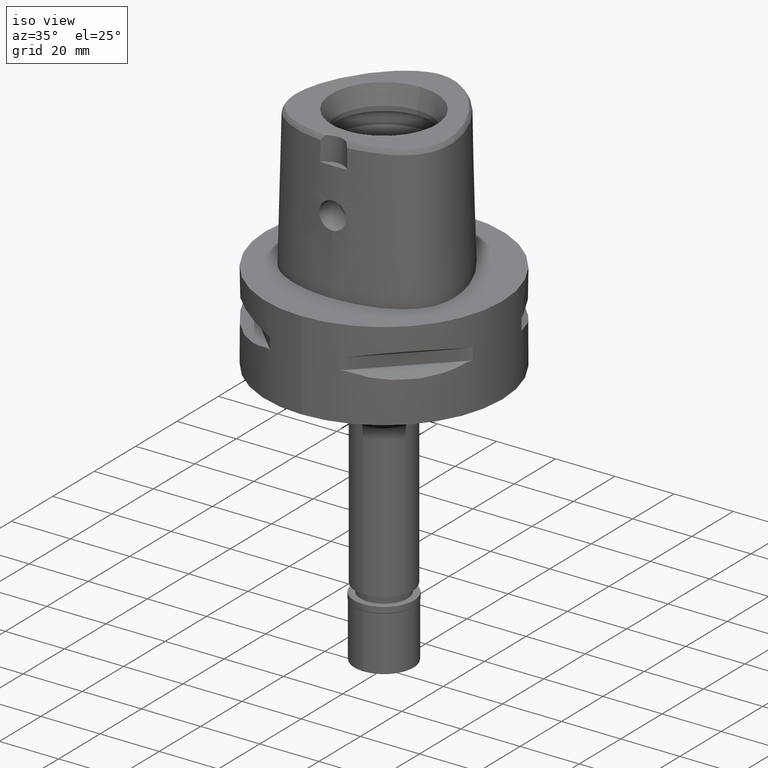
[diagram: clean part render]
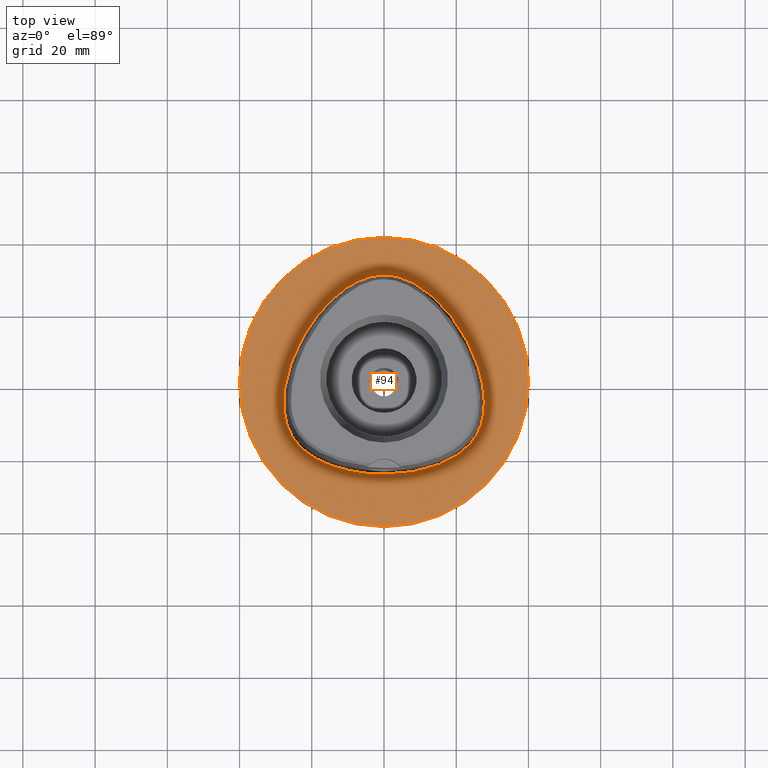
[diagram: tour spotlight — one face highlighted and labeled with its STEP entity id]
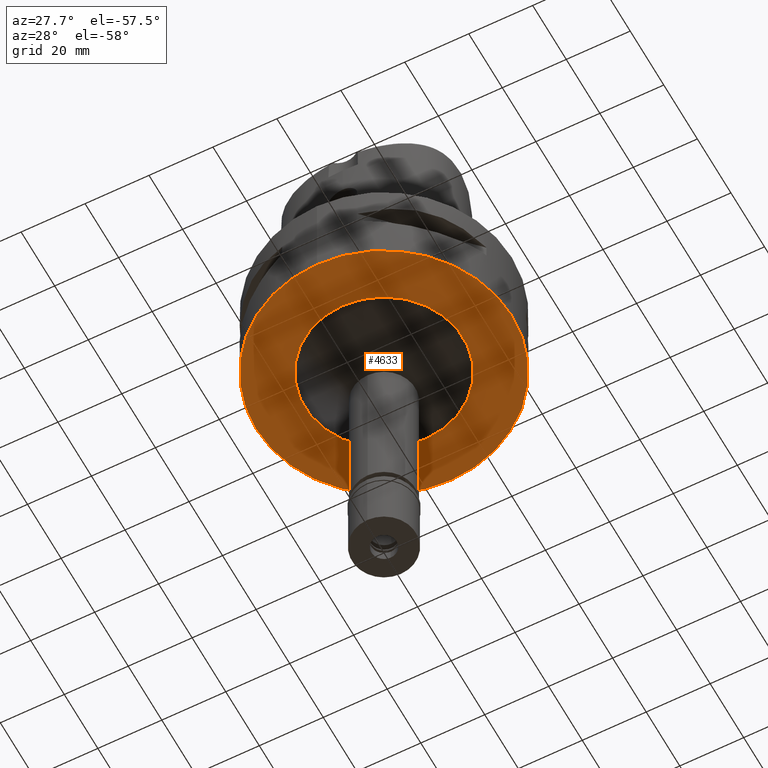
[diagram: tour spotlight — one face highlighted and labeled with its STEP entity id]
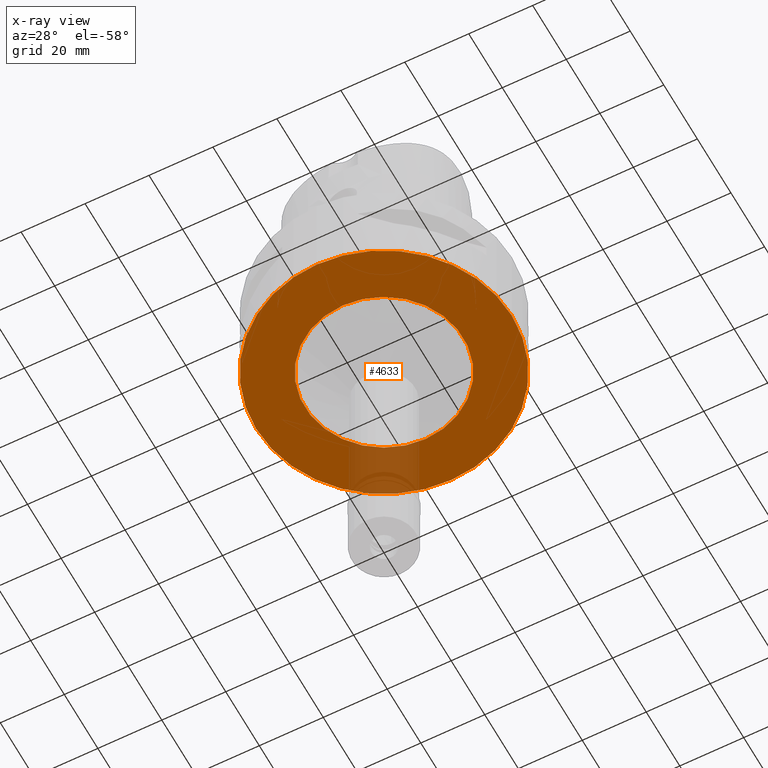
[diagram: x-ray of the same camera — body ghosted, this tour face saturated]
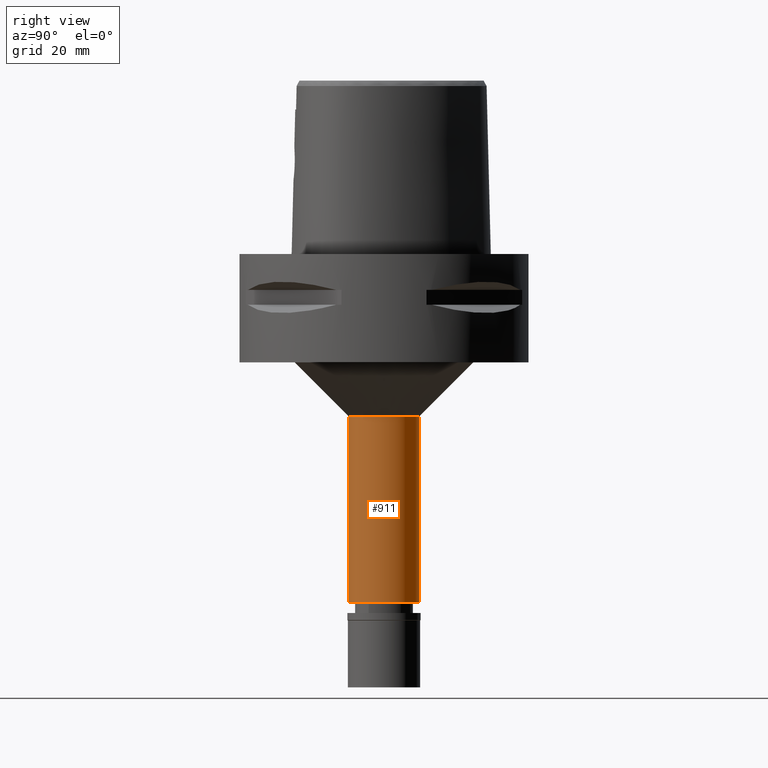
[diagram: tour spotlight — one face highlighted and labeled with its STEP entity id]
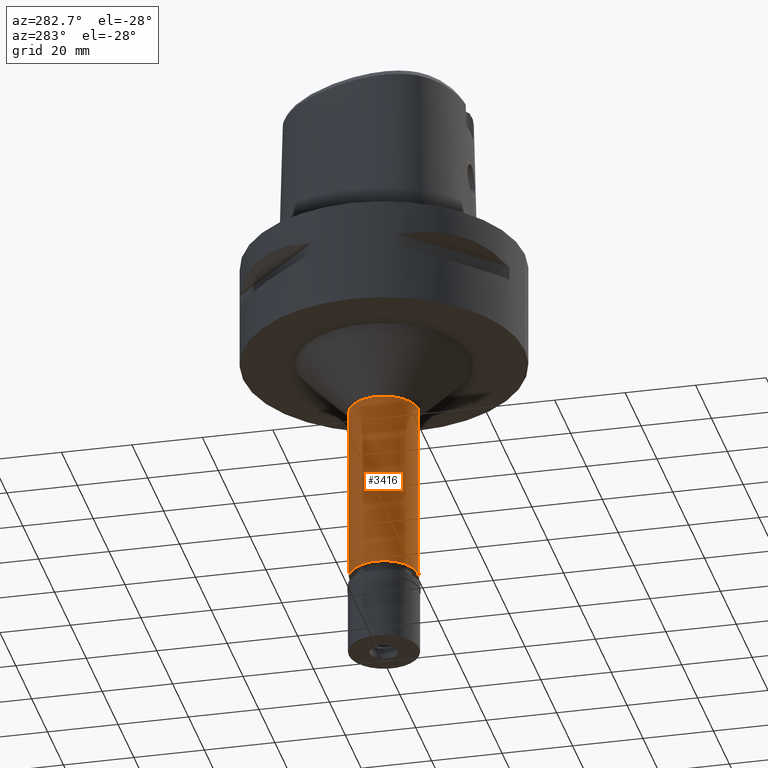
[diagram: tour spotlight — one face highlighted and labeled with its STEP entity id]
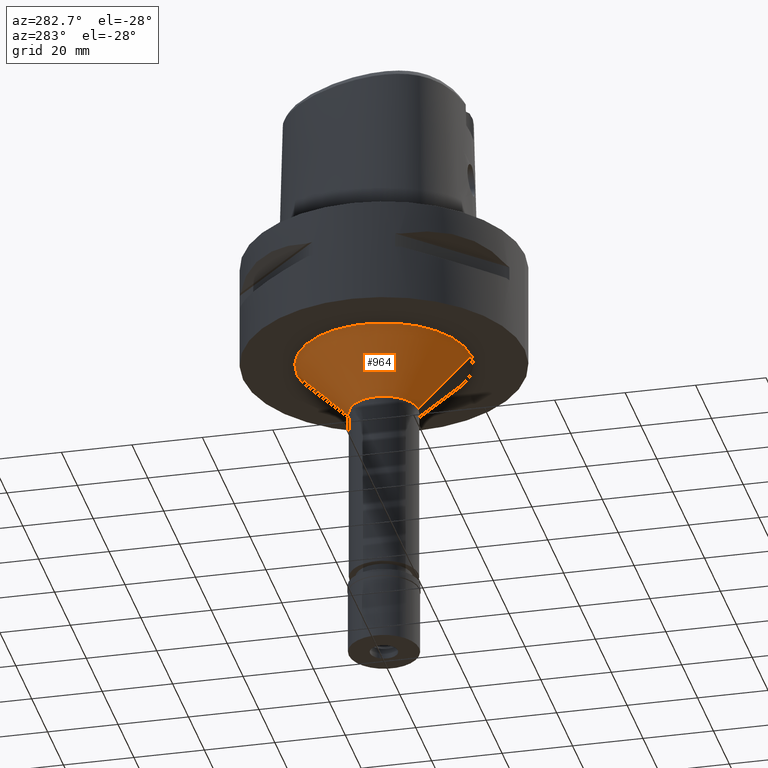
[diagram: tour spotlight — one face highlighted and labeled with its STEP entity id]
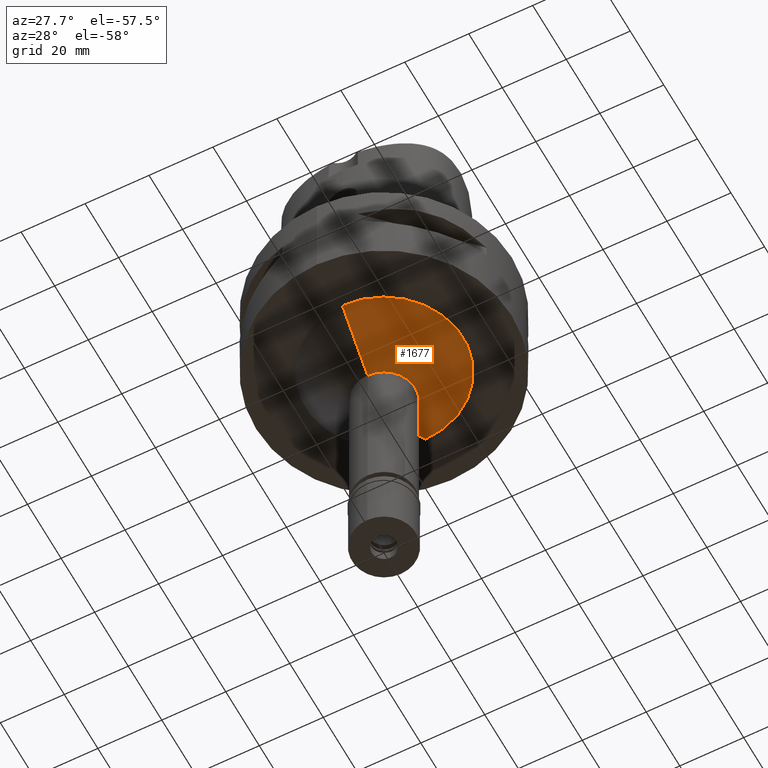
[diagram: tour spotlight — one face highlighted and labeled with its STEP entity id]
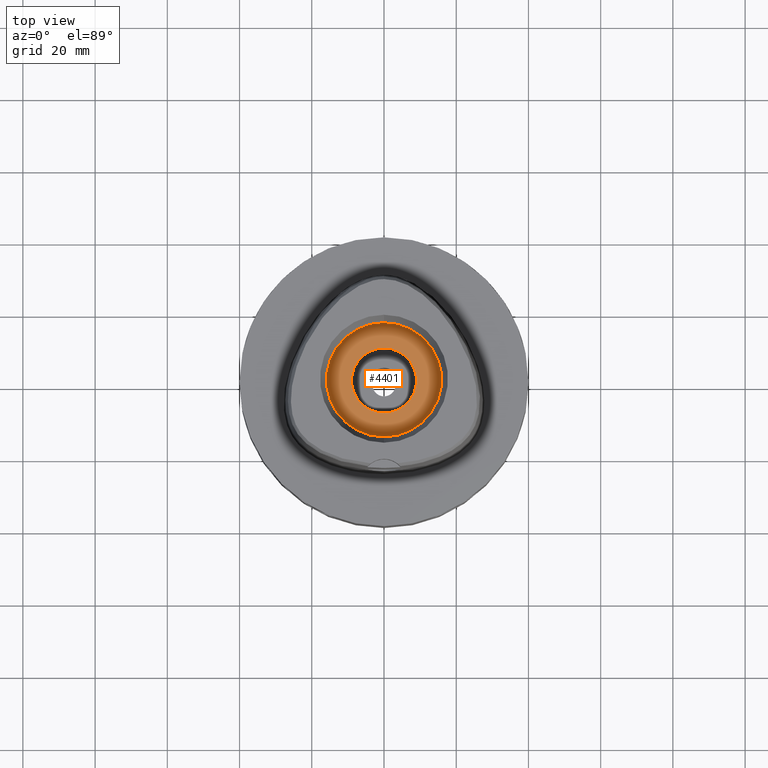
[diagram: tour spotlight — one face highlighted and labeled with its STEP entity id]
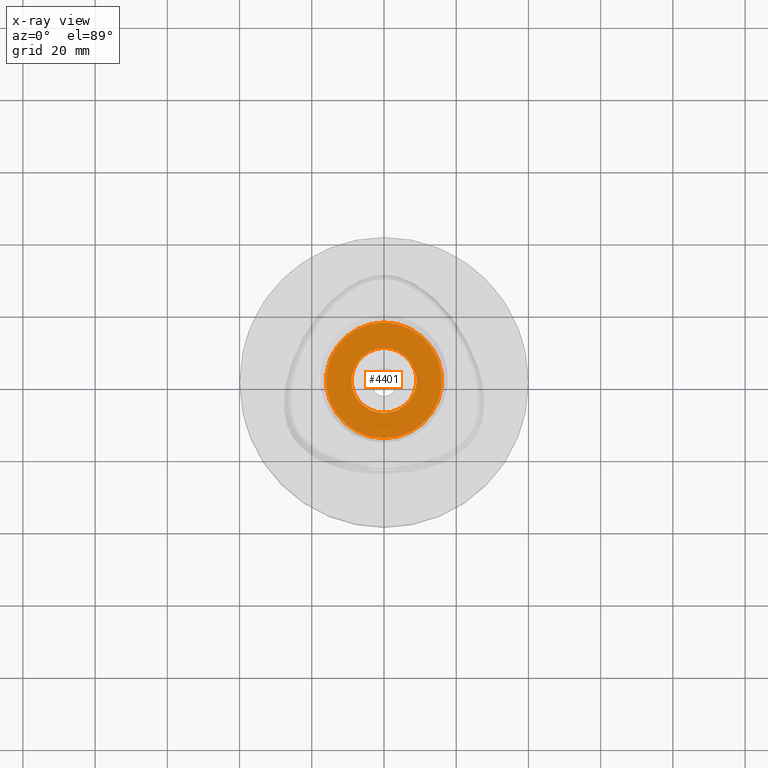
[diagram: x-ray of the same camera — body ghosted, this tour face saturated]
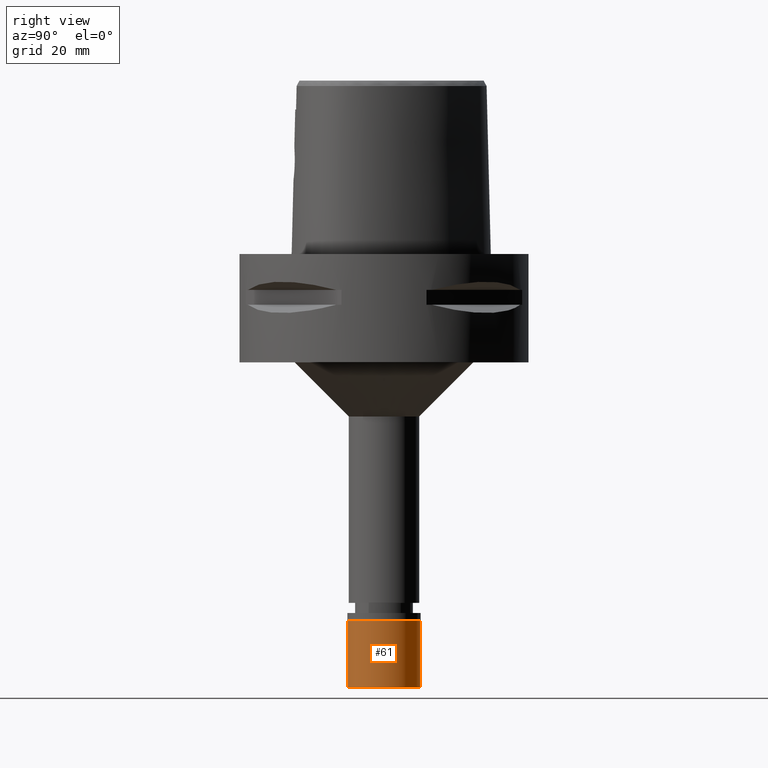
[diagram: tour spotlight — one face highlighted and labeled with its STEP entity id]
A machine part: a face-by-face anatomy tour. The part has 98 B-rep faces; the first image is the clean iso view, then the 8 largest visible faces are spotlighted one at a time (largest first), each with its STEP entity span.

Face 1 — top view, entity #94. In plain terms, the highlighted planar face has unit normal (0, 0, -1).
Definition (entity closure, byte-faithful):
#72 = VERTEX_POINT ( 'NONE', #533 ) ;
#92 = B_SPLINE_CURVE_WITH_KNOTS ( 'NONE', 3,
 ( #3425, #717, #3475, #3071, #4635, #5051, #3152, #359, #4661, #2687, #5027, #4610, #5000, #1089, #386, #1461, #2350, #3045, #3868, #692, #1170, #3838, #5080, #1903, #278 ),
 .UNSPECIFIED., .F., .F.,
 ( 4, 1, 1, 1, 1, 1, 1, 1, 1, 1, 1, 1, 1, 1, 1, 1, 1, 1, 1, 1, 1, 1, 4 ),
 ( 0.0000000000000000000, 0.04166666666711999617, 0.08333333333375000929, 0.1250000000004000134, 0.1666666666671000052, 0.2500000000002999823, 0.3333333333335000148, 0.4166666666668999985, 0.4583333333333999837, 0.5000000000001000311, 0.5416666666667999674, 0.5833333333333000637, 0.6250000000000000000, 0.6458333333333000637, 0.6666666666667000474, 0.6875000000000000000, 0.7083333333332000326, 0.7499999999999000799, 0.7916666666666000163, 0.8333333333332000326, 0.8749999999998000488, 0.9166666666664999852, 1.000000000000000000 ),
 .UNSPECIFIED. ) ;
#94 = ADVANCED_FACE ( 'NONE', ( #2259, #4889 ), #483, .F. ) ;
#168 = CARTESIAN_POINT ( 'NONE',  ( 1.049694954398138425, 29.57499994949292699, 2.020350682975860512E-06 ) ) ;
#176 = DIRECTION ( 'NONE',  ( 0.0000000000000000000, 0.0000000000000000000, -1.000000000000000000 ) ) ;
#278 = CARTESIAN_POINT ( 'NONE',  ( -1.503646693047000230E-11, -25.57499999999999929, 7.701247047482998387E-14 ) ) ;
#356 = EDGE_CURVE ( 'NONE', #712, #72, #92, .T. ) ;
#359 = CARTESIAN_POINT ( 'NONE',  ( -22.33885462298861313, 12.89734372997361334, 1.595594824506125359E-06 ) ) ;
#386 = CARTESIAN_POINT ( 'NONE',  ( -26.34912733559843900, -13.39455076519696952, 1.595594824506125359E-06 ) ) ;
#483 = PLANE ( 'NONE',  #2190 ) ;
#533 = CARTESIAN_POINT ( 'NONE',  ( -1.503646693047000230E-11, -25.57499999999999929, 7.701247047482998387E-14 ) ) ;
#557 = CARTESIAN_POINT ( 'NONE',  ( 22.33885461375145454, 12.89734372464069168, 2.020350682975860512E-06 ) ) ;
#646 = EDGE_LOOP ( 'NONE', ( #3183, #3051 ) ) ;
#689 = CARTESIAN_POINT ( 'NONE',  ( 3.645689543555000014E-11, 29.57499999998999840, 7.064719180030999212E-14 ) ) ;
#692 = CARTESIAN_POINT ( 'NONE',  ( -18.55019647169896402, -21.45394527736029744, 1.595594824506125359E-06 ) ) ;
#712 = VERTEX_POINT ( 'NONE', #689 ) ;
#717 = CARTESIAN_POINT ( 'NONE',  ( -1.049694955183609224, 29.57499996011365084, 1.595594824506125359E-06 ) ) ;
#748 = EDGE_CURVE ( 'NONE', #72, #712, #3134, .T. ) ;
#796 = CARTESIAN_POINT ( 'NONE',  ( -1.503646693047000230E-11, -25.57499999999999929, 7.701247047482998387E-14 ) ) ;
#838 = CIRCLE ( 'NONE', #3739, 40.00000000000000000 ) ;
#894 = CARTESIAN_POINT ( 'NONE',  ( 26.34912732586222361, -13.39455076092531094, 2.020350682975860512E-06 ) ) ;
#968 = CARTESIAN_POINT ( 'NONE',  ( 3.149084863600866147, 29.34015620035621552, 2.020350682975860512E-06 ) ) ;
#1089 = CARTESIAN_POINT ( 'NONE',  ( -27.10051713519218808, -11.41106444216246629, 1.595594824506125359E-06 ) ) ;
#1170 = CARTESIAN_POINT ( 'NONE',  ( -15.29776364832613034, -22.96525386901443966, 1.595594824506125359E-06 ) ) ;
#1296 = AXIS2_PLACEMENT_3D ( 'NONE', #4535, #176, #1848 ) ;
#1298 = EDGE_CURVE ( 'NONE', #4826, #2456, #838, .T. ) ;
#1314 = CARTESIAN_POINT ( 'NONE',  ( 17.75297947250131614, 19.52218746774529734, 2.020350682975860512E-06 ) ) ;
#1422 = DIRECTION ( 'NONE',  ( 0.0000000000000000000, 0.0000000000000000000, -1.000000000000000000 ) ) ;
#1461 = CARTESIAN_POINT ( 'NONE',  ( -25.63812386398702259, -14.80217771439694019, 1.595594824506125359E-06 ) ) ;
#1476 = DIRECTION ( 'NONE',  ( 0.0000000000000000000, -1.000000000000000000, 0.0000000000000000000 ) ) ;
#1648 = CARTESIAN_POINT ( 'NONE',  ( 15.29776364445727665, -22.96525385909394146, 2.020350682975860512E-06 ) ) ;
#1741 = CARTESIAN_POINT ( 'NONE',  ( 24.77458489416542520, -16.12173825127648286, 2.020350682975860512E-06 ) ) ;
#1765 = CARTESIAN_POINT ( 'NONE',  ( 26.77222809381433777, 1.900468737017501741, 2.020350682975860512E-06 ) ) ;
#1848 = DIRECTION ( 'NONE',  ( 0.0000000000000000000, -1.000000000000000000, 0.0000000000000000000 ) ) ;
#1903 = CARTESIAN_POINT ( 'NONE',  ( -2.676740183358208736, -25.57499996010817966, 1.595594824506125359E-06 ) ) ;
#2102 = DIRECTION ( 'NONE',  ( 0.0000000000000000000, 0.0000000000000000000, -1.000000000000000000 ) ) ;
#2190 = AXIS2_PLACEMENT_3D ( 'NONE', #4427, #2102, #1476 ) ;
#2259 = FACE_OUTER_BOUND ( 'NONE', #646, .T. ) ;
#2285 = CARTESIAN_POINT ( 'NONE',  ( 0.0000000000000000000, 1.293227019899999867E-14, 0.0000000000000000000 ) ) ;
#2350 = CARTESIAN_POINT ( 'NONE',  ( -24.77458490273590996, -16.12173825758891965, 1.595594824506125359E-06 ) ) ;
#2399 = CARTESIAN_POINT ( 'NONE',  ( 6.691850456881861753, -25.24546869981140063, 2.020350682975860512E-06 ) ) ;
#2456 = VERTEX_POINT ( 'NONE', #2688 ) ;
#2495 = CARTESIAN_POINT ( 'NONE',  ( 27.68378748809411505, -8.751933587375303247, 2.020350682975860512E-06 ) ) ;
#2572 = CARTESIAN_POINT ( 'NONE',  ( 13.21796077208793285, 24.04386714922729595, 2.020350682975860512E-06 ) ) ;
#2687 = CARTESIAN_POINT ( 'NONE',  ( -26.77222810408956022, 1.900468739746888458, 1.595594824506125359E-06 ) ) ;
#2688 = CARTESIAN_POINT ( 'NONE',  ( 0.0000000000000000000, -40.00000000000000000, 0.0000000000000000000 ) ) ;
#2810 = CARTESIAN_POINT ( 'NONE',  ( 11.74025984155485958, -24.13566401366437475, 2.020350682975860512E-06 ) ) ;
#2834 = CARTESIAN_POINT ( 'NONE',  ( 2.676740182761364828, -25.57499994949064970, 2.020350682975860512E-06 ) ) ;
#3045 = CARTESIAN_POINT ( 'NONE',  ( -23.43253025873229944, -17.76420407368973287, 1.595594824506125359E-06 ) ) ;
#3051 = ORIENTED_EDGE ( 'NONE', *, *, #4613, .F. ) ;
#3071 = CARTESIAN_POINT ( 'NONE',  ( -6.262496929278441371, 28.35083004117371885, 1.595594824506125359E-06 ) ) ;
#3134 = B_SPLINE_CURVE_WITH_KNOTS ( 'NONE', 3,
 ( #796, #2834, #2399, #2810, #1648, #3226, #4014, #3630, #1741, #4525, #894, #4938, #2495, #4139, #3722, #1765, #3698, #557, #1314, #2572, #3775, #4912, #968, #168, #3312 ),
 .UNSPECIFIED., .F., .F.,
 ( 4, 1, 1, 1, 1, 1, 1, 1, 1, 1, 1, 1, 1, 1, 1, 1, 1, 1, 1, 1, 1, 1, 4 ),
 ( 0.0000000000000000000, 0.08333333333344000726, 0.1250000000001000033, 0.1666666666668000230, 0.2083333333333000081, 0.2500000000000000000, 0.2916666666666999919, 0.3125000000000000000, 0.3333333333333000081, 0.3541666666666000163, 0.3749999999998999689, 0.4166666666666000163, 0.4583333333332000326, 0.4999999999998999689, 0.5416666666664999852, 0.5833333333331000015, 0.6666666666664999852, 0.7499999999997000177, 0.8333333333329999704, 0.8749999999995999866, 0.9166666666663000340, 0.9583333333329000503, 1.000000000000000000 ),
 .UNSPECIFIED. ) ;
#3152 = CARTESIAN_POINT ( 'NONE',  ( -17.75297948074545573, 19.52218747452653957, 1.595594824506125359E-06 ) ) ;
#3183 = ORIENTED_EDGE ( 'NONE', *, *, #1298, .F. ) ;
#3226 = CARTESIAN_POINT ( 'NONE',  ( 18.55019646660002053, -21.45394526799957902, 2.020350682975860512E-06 ) ) ;
#3303 = EDGE_LOOP ( 'NONE', ( #3628, #3697 ) ) ;
#3312 = CARTESIAN_POINT ( 'NONE',  ( 3.645689543555000014E-11, 29.57499999998999840, 7.064719180030999212E-14 ) ) ;
#3355 = CARTESIAN_POINT ( 'NONE',  ( 0.0000000000000000000, 40.00000000000000000, 0.0000000000000000000 ) ) ;
#3425 = CARTESIAN_POINT ( 'NONE',  ( 3.645689543555000014E-11, 29.57499999998999840, 7.064719180030999212E-14 ) ) ;
#3475 = CARTESIAN_POINT ( 'NONE',  ( -3.149084865895401819, 29.34015621079255354, 1.595594824506125359E-06 ) ) ;
#3628 = ORIENTED_EDGE ( 'NONE', *, *, #356, .F. ) ;
#3630 = CARTESIAN_POINT ( 'NONE',  ( 23.43253025107832599, -17.76420406627631010, 2.020350682975860512E-06 ) ) ;
#3697 = ORIENTED_EDGE ( 'NONE', *, *, #748, .F. ) ;
#3698 = CARTESIAN_POINT ( 'NONE',  ( 25.20914245292983580, 6.827421855915919657, 2.020350682975860512E-06 ) ) ;
#3722 = CARTESIAN_POINT ( 'NONE',  ( 27.53737506855495099, -1.765625007642571243, 2.020350682975860512E-06 ) ) ;
#3739 = AXIS2_PLACEMENT_3D ( 'NONE', #2285, #1422, #4601 ) ;
#3775 = CARTESIAN_POINT ( 'NONE',  ( 9.304563380186808175, 26.79191401927194249, 2.020350682975860512E-06 ) ) ;
#3838 = CARTESIAN_POINT ( 'NONE',  ( -11.74025984432930514, -24.13566402393587040, 1.595594824506125359E-06 ) ) ;
#3868 = CARTESIAN_POINT ( 'NONE',  ( -21.42129056940252596, -19.59889645246299494, 1.595594824506125359E-06 ) ) ;
#4014 = CARTESIAN_POINT ( 'NONE',  ( 21.42129056295577882, -19.59889644397081199, 2.020350682975860512E-06 ) ) ;
#4139 = CARTESIAN_POINT ( 'NONE',  ( 27.85475984679016292, -5.337968751270051548, 2.020350682975860512E-06 ) ) ;
#4361 = CIRCLE ( 'NONE', #1296, 40.00000000000000000 ) ;
#4427 = CARTESIAN_POINT ( 'NONE',  ( 0.0000000000000000000, 1.224646799146999965E-14, 0.0000000000000000000 ) ) ;
#4525 = CARTESIAN_POINT ( 'NONE',  ( 25.63812385476946076, -14.80217770907538366, 2.020350682975860512E-06 ) ) ;
#4535 = CARTESIAN_POINT ( 'NONE',  ( 0.0000000000000000000, 1.293227019899999867E-14, 0.0000000000000000000 ) ) ;
#4601 = DIRECTION ( 'NONE',  ( 0.0000000000000000000, 1.000000000000000000, 0.0000000000000000000 ) ) ;
#4610 = CARTESIAN_POINT ( 'NONE',  ( -27.85475985745046756, -5.337968751003428380, 1.595594824506125359E-06 ) ) ;
#4613 = EDGE_CURVE ( 'NONE', #2456, #4826, #4361, .T. ) ;
#4635 = CARTESIAN_POINT ( 'NONE',  ( -9.304563385743579218, 26.79191402835996172, 1.595594824506125359E-06 ) ) ;
#4661 = CARTESIAN_POINT ( 'NONE',  ( -25.20914246279390269, 6.827421859928866965, 1.595594824506125359E-06 ) ) ;
#4826 = VERTEX_POINT ( 'NONE', #3355 ) ;
#4889 = FACE_BOUND ( 'NONE', #3303, .T. ) ;
#4912 = CARTESIAN_POINT ( 'NONE',  ( 6.262496925149326543, 28.35083003135327928, 2.020350682975860512E-06 ) ) ;
#4938 = CARTESIAN_POINT ( 'NONE',  ( 27.10051712494639631, -11.41106443924220670, 2.020350682975860512E-06 ) ) ;
#5000 = CARTESIAN_POINT ( 'NONE',  ( -27.68378749867737909, -8.751933588715409940, 1.595594824506125359E-06 ) ) ;
#5027 = CARTESIAN_POINT ( 'NONE',  ( -27.53737507908477511, -1.765625006035392852, 1.595594824506125359E-06 ) ) ;
#5051 = CARTESIAN_POINT ( 'NONE',  ( -13.21796077910077294, 24.04386715727211055, 1.595594824506125359E-06 ) ) ;
#5080 = CARTESIAN_POINT ( 'NONE',  ( -6.691850458342099017, -25.24546871036294249, 1.595594824506125359E-06 ) ) ;

Face 2 — auxiliary view, entity #4633. An x-ray twin of the same camera follows (body ghosted, this face saturated) — the face is partly hidden behind the body. In plain terms, the highlighted planar face has unit normal (0, 0, -1).
Definition (entity closure, byte-faithful):
#18 = VERTEX_POINT ( 'NONE', #2531 ) ;
#213 = DIRECTION ( 'NONE',  ( 0.0000000000000000000, 0.0000000000000000000, -1.000000000000000000 ) ) ;
#481 = CARTESIAN_POINT ( 'NONE',  ( 0.0000000000000000000, 24.75000000000000000, -30.00000000000000000 ) ) ;
#488 = DIRECTION ( 'NONE',  ( 0.0000000000000000000, 0.0000000000000000000, 1.000000000000000000 ) ) ;
#569 = DIRECTION ( 'NONE',  ( 0.0000000000000000000, 0.0000000000000000000, -1.000000000000000000 ) ) ;
#641 = DIRECTION ( 'NONE',  ( 0.0000000000000000000, -1.000000000000000000, 0.0000000000000000000 ) ) ;
#755 = CIRCLE ( 'NONE', #3664, 40.00000000000000000 ) ;
#860 = ORIENTED_EDGE ( 'NONE', *, *, #3222, .F. ) ;
#977 = FACE_BOUND ( 'NONE', #2880, .T. ) ;
#1053 = AXIS2_PLACEMENT_3D ( 'NONE', #1438, #213, #1857 ) ;
#1177 = VERTEX_POINT ( 'NONE', #481 ) ;
#1395 = DIRECTION ( 'NONE',  ( 0.0000000000000000000, 1.000000000000000000, 0.0000000000000000000 ) ) ;
#1438 = CARTESIAN_POINT ( 'NONE',  ( 0.0000000000000000000, 0.0000000000000000000, -30.00000000000000000 ) ) ;
#1471 = EDGE_CURVE ( 'NONE', #18, #3872, #755, .T. ) ;
#1561 = ORIENTED_EDGE ( 'NONE', *, *, #1471, .F. ) ;
#1660 = CARTESIAN_POINT ( 'NONE',  ( 0.0000000000000000000, 0.0000000000000000000, -30.00000000000000000 ) ) ;
#1801 = FACE_OUTER_BOUND ( 'NONE', #2472, .T. ) ;
#1857 = DIRECTION ( 'NONE',  ( 0.0000000000000000000, 1.000000000000000000, 0.0000000000000000000 ) ) ;
#2165 = EDGE_CURVE ( 'NONE', #2783, #1177, #4246, .T. ) ;
#2235 = CARTESIAN_POINT ( 'NONE',  ( 0.0000000000000000000, -24.75000000000000000, -30.00000000000000000 ) ) ;
#2469 = CIRCLE ( 'NONE', #1053, 24.75000000000000000 ) ;
#2472 = EDGE_LOOP ( 'NONE', ( #1561, #860 ) ) ;
#2531 = CARTESIAN_POINT ( 'NONE',  ( 0.0000000000000000000, 40.00000000000000000, -30.00000000000000000 ) ) ;
#2638 = PLANE ( 'NONE',  #5018 ) ;
#2783 = VERTEX_POINT ( 'NONE', #2235 ) ;
#2880 = EDGE_LOOP ( 'NONE', ( #4231, #4095 ) ) ;
#3222 = EDGE_CURVE ( 'NONE', #3872, #18, #3607, .T. ) ;
#3441 = CARTESIAN_POINT ( 'NONE',  ( 0.0000000000000000000, 1.293227019899999867E-14, -30.00000000000000000 ) ) ;
#3607 = CIRCLE ( 'NONE', #4504, 40.00000000000000000 ) ;
#3664 = AXIS2_PLACEMENT_3D ( 'NONE', #3441, #4939, #1395 ) ;
#3710 = DIRECTION ( 'NONE',  ( 0.0000000000000000000, -1.000000000000000000, 0.0000000000000000000 ) ) ;
#3758 = CARTESIAN_POINT ( 'NONE',  ( 0.0000000000000000000, 0.0000000000000000000, -30.00000000000000000 ) ) ;
#3855 = CARTESIAN_POINT ( 'NONE',  ( 0.0000000000000000000, -40.00000000000000000, -30.00000000000000000 ) ) ;
#3872 = VERTEX_POINT ( 'NONE', #3855 ) ;
#4044 = DIRECTION ( 'NONE',  ( 0.0000000000000000000, -1.000000000000000000, 0.0000000000000000000 ) ) ;
#4095 = ORIENTED_EDGE ( 'NONE', *, *, #2165, .F. ) ;
#4201 = DIRECTION ( 'NONE',  ( 0.0000000000000000000, 0.0000000000000000000, -1.000000000000000000 ) ) ;
#4231 = ORIENTED_EDGE ( 'NONE', *, *, #4937, .F. ) ;
#4246 = CIRCLE ( 'NONE', #4408, 24.75000000000000000 ) ;
#4408 = AXIS2_PLACEMENT_3D ( 'NONE', #1660, #569, #3710 ) ;
#4504 = AXIS2_PLACEMENT_3D ( 'NONE', #4505, #488, #4044 ) ;
#4505 = CARTESIAN_POINT ( 'NONE',  ( 0.0000000000000000000, 1.293227019899999867E-14, -30.00000000000000000 ) ) ;
#4633 = ADVANCED_FACE ( 'NONE', ( #1801, #977 ), #2638, .T. ) ;
#4937 = EDGE_CURVE ( 'NONE', #1177, #2783, #2469, .T. ) ;
#4939 = DIRECTION ( 'NONE',  ( 0.0000000000000000000, 0.0000000000000000000, 1.000000000000000000 ) ) ;
#5018 = AXIS2_PLACEMENT_3D ( 'NONE', #3758, #4201, #641 ) ;

Face 3 — right view, entity #911. In plain terms, the highlighted cylindrical surface (edge-blend (fillet) strip) has radius 9.75 mm, axis along (0, 0, -1).
Definition (entity closure, byte-faithful):
#37 = ORIENTED_EDGE ( 'NONE', *, *, #4923, .T. ) ;
#153 = EDGE_CURVE ( 'NONE', #1378, #311, #2028, .T. ) ;
#311 = VERTEX_POINT ( 'NONE', #4328 ) ;
#440 = AXIS2_PLACEMENT_3D ( 'NONE', #5012, #875, #1342 ) ;
#490 = VERTEX_POINT ( 'NONE', #4870 ) ;
#875 = DIRECTION ( 'NONE',  ( 0.0000000000000000000, 0.0000000000000000000, 1.000000000000000000 ) ) ;
#911 = ADVANCED_FACE ( 'NONE', ( #1815 ), #3386, .T. ) ;
#1098 = DIRECTION ( 'NONE',  ( 0.0000000000000000000, 1.000000000000000000, 0.0000000000000000000 ) ) ;
#1126 = VECTOR ( 'NONE', #4666, 1000.000000000000000 ) ;
#1342 = DIRECTION ( 'NONE',  ( 0.0000000000000000000, -1.000000000000000000, 0.0000000000000000000 ) ) ;
#1378 = VERTEX_POINT ( 'NONE', #3009 ) ;
#1482 = DIRECTION ( 'NONE',  ( 0.0000000000000000000, 0.0000000000000000000, -1.000000000000000000 ) ) ;
#1760 = CARTESIAN_POINT ( 'NONE',  ( 0.0000000000000000000, 9.750000000000000000, -45.00000000000000000 ) ) ;
#1782 = EDGE_CURVE ( 'NONE', #1897, #490, #3832, .T. ) ;
#1815 = FACE_OUTER_BOUND ( 'NONE', #2848, .T. ) ;
#1897 = VERTEX_POINT ( 'NONE', #1760 ) ;
#1939 = CARTESIAN_POINT ( 'NONE',  ( 0.0000000000000000000, 0.0000000000000000000, -45.00000000000000000 ) ) ;
#2004 = ORIENTED_EDGE ( 'NONE', *, *, #153, .T. ) ;
#2028 = CIRCLE ( 'NONE', #440, 9.750000000000000000 ) ;
#2212 = LINE ( 'NONE', #3779, #4673 ) ;
#2229 = CARTESIAN_POINT ( 'NONE',  ( 0.0000000000000000000, -9.750000000000000000, -45.00000000000000000 ) ) ;
#2385 = DIRECTION ( 'NONE',  ( 0.0000000000000000000, 0.0000000000000000000, -1.000000000000000000 ) ) ;
#2848 = EDGE_LOOP ( 'NONE', ( #3623, #37, #2004, #4013 ) ) ;
#2905 = DIRECTION ( 'NONE',  ( 0.0000000000000000000, 0.0000000000000000000, -1.000000000000000000 ) ) ;
#3009 = CARTESIAN_POINT ( 'NONE',  ( 0.0000000000000000000, -9.750000000000000000, -96.60000000000000853 ) ) ;
#3294 = CARTESIAN_POINT ( 'NONE',  ( 0.0000000000000000000, 1.293227019899999867E-14, 5.599999999999999645 ) ) ;
#3386 = CYLINDRICAL_SURFACE ( 'NONE', #4404, 9.750000000000000000 ) ;
#3482 = LINE ( 'NONE', #2229, #1126 ) ;
#3623 = ORIENTED_EDGE ( 'NONE', *, *, #1782, .T. ) ;
#3779 = CARTESIAN_POINT ( 'NONE',  ( 0.0000000000000000000, 9.750000000000000000, -45.00000000000000000 ) ) ;
#3832 = CIRCLE ( 'NONE', #4327, 9.750000000000000000 ) ;
#3978 = EDGE_CURVE ( 'NONE', #1897, #311, #2212, .T. ) ;
#4013 = ORIENTED_EDGE ( 'NONE', *, *, #3978, .F. ) ;
#4327 = AXIS2_PLACEMENT_3D ( 'NONE', #1939, #2385, #1098 ) ;
#4328 = CARTESIAN_POINT ( 'NONE',  ( 0.0000000000000000000, 9.750000000000000000, -96.60000000000000853 ) ) ;
#4404 = AXIS2_PLACEMENT_3D ( 'NONE', #3294, #2905, #4473 ) ;
#4473 = DIRECTION ( 'NONE',  ( 0.0000000000000000000, -1.000000000000000000, 0.0000000000000000000 ) ) ;
#4666 = DIRECTION ( 'NONE',  ( 0.0000000000000000000, 0.0000000000000000000, -1.000000000000000000 ) ) ;
#4673 = VECTOR ( 'NONE', #1482, 1000.000000000000000 ) ;
#4870 = CARTESIAN_POINT ( 'NONE',  ( 0.0000000000000000000, -9.750000000000000000, -45.00000000000000000 ) ) ;
#4923 = EDGE_CURVE ( 'NONE', #490, #1378, #3482, .T. ) ;
#5012 = CARTESIAN_POINT ( 'NONE',  ( 0.0000000000000000000, 1.293227019899999867E-14, -96.60000000000000853 ) ) ;

Face 4 — auxiliary view, entity #3416. In plain terms, the highlighted cylindrical surface (edge-blend (fillet) strip) has radius 9.75 mm, axis along (0, 0, -1).
Definition (entity closure, byte-faithful):
#66 = ORIENTED_EDGE ( 'NONE', *, *, #4923, .F. ) ;
#276 = FACE_OUTER_BOUND ( 'NONE', #2771, .T. ) ;
#307 = EDGE_CURVE ( 'NONE', #490, #1897, #2196, .T. ) ;
#311 = VERTEX_POINT ( 'NONE', #4328 ) ;
#470 = EDGE_CURVE ( 'NONE', #311, #1378, #5072, .T. ) ;
#490 = VERTEX_POINT ( 'NONE', #4870 ) ;
#743 = CARTESIAN_POINT ( 'NONE',  ( 0.0000000000000000000, 0.0000000000000000000, -45.00000000000000000 ) ) ;
#1126 = VECTOR ( 'NONE', #4666, 1000.000000000000000 ) ;
#1152 = ORIENTED_EDGE ( 'NONE', *, *, #470, .T. ) ;
#1355 = AXIS2_PLACEMENT_3D ( 'NONE', #1724, #3300, #2186 ) ;
#1378 = VERTEX_POINT ( 'NONE', #3009 ) ;
#1482 = DIRECTION ( 'NONE',  ( 0.0000000000000000000, 0.0000000000000000000, -1.000000000000000000 ) ) ;
#1509 = DIRECTION ( 'NONE',  ( 0.0000000000000000000, 0.0000000000000000000, -1.000000000000000000 ) ) ;
#1724 = CARTESIAN_POINT ( 'NONE',  ( 0.0000000000000000000, 1.293227019899999867E-14, -96.60000000000000853 ) ) ;
#1760 = CARTESIAN_POINT ( 'NONE',  ( 0.0000000000000000000, 9.750000000000000000, -45.00000000000000000 ) ) ;
#1871 = AXIS2_PLACEMENT_3D ( 'NONE', #2319, #1509, #2294 ) ;
#1872 = CYLINDRICAL_SURFACE ( 'NONE', #1871, 9.750000000000000000 ) ;
#1897 = VERTEX_POINT ( 'NONE', #1760 ) ;
#2186 = DIRECTION ( 'NONE',  ( 0.0000000000000000000, 1.000000000000000000, 0.0000000000000000000 ) ) ;
#2196 = CIRCLE ( 'NONE', #2279, 9.750000000000000000 ) ;
#2212 = LINE ( 'NONE', #3779, #4673 ) ;
#2229 = CARTESIAN_POINT ( 'NONE',  ( 0.0000000000000000000, -9.750000000000000000, -45.00000000000000000 ) ) ;
#2279 = AXIS2_PLACEMENT_3D ( 'NONE', #743, #2377, #2761 ) ;
#2294 = DIRECTION ( 'NONE',  ( 0.0000000000000000000, -1.000000000000000000, 0.0000000000000000000 ) ) ;
#2319 = CARTESIAN_POINT ( 'NONE',  ( 0.0000000000000000000, 1.293227019899999867E-14, 5.599999999999999645 ) ) ;
#2377 = DIRECTION ( 'NONE',  ( 0.0000000000000000000, 0.0000000000000000000, -1.000000000000000000 ) ) ;
#2407 = ORIENTED_EDGE ( 'NONE', *, *, #3978, .T. ) ;
#2761 = DIRECTION ( 'NONE',  ( 0.0000000000000000000, -1.000000000000000000, 0.0000000000000000000 ) ) ;
#2771 = EDGE_LOOP ( 'NONE', ( #1152, #66, #4416, #2407 ) ) ;
#3009 = CARTESIAN_POINT ( 'NONE',  ( 0.0000000000000000000, -9.750000000000000000, -96.60000000000000853 ) ) ;
#3300 = DIRECTION ( 'NONE',  ( 0.0000000000000000000, 0.0000000000000000000, 1.000000000000000000 ) ) ;
#3416 = ADVANCED_FACE ( 'NONE', ( #276 ), #1872, .T. ) ;
#3482 = LINE ( 'NONE', #2229, #1126 ) ;
#3779 = CARTESIAN_POINT ( 'NONE',  ( 0.0000000000000000000, 9.750000000000000000, -45.00000000000000000 ) ) ;
#3978 = EDGE_CURVE ( 'NONE', #1897, #311, #2212, .T. ) ;
#4328 = CARTESIAN_POINT ( 'NONE',  ( 0.0000000000000000000, 9.750000000000000000, -96.60000000000000853 ) ) ;
#4416 = ORIENTED_EDGE ( 'NONE', *, *, #307, .T. ) ;
#4666 = DIRECTION ( 'NONE',  ( 0.0000000000000000000, 0.0000000000000000000, -1.000000000000000000 ) ) ;
#4673 = VECTOR ( 'NONE', #1482, 1000.000000000000000 ) ;
#4870 = CARTESIAN_POINT ( 'NONE',  ( 0.0000000000000000000, -9.750000000000000000, -45.00000000000000000 ) ) ;
#4923 = EDGE_CURVE ( 'NONE', #490, #1378, #3482, .T. ) ;
#5072 = CIRCLE ( 'NONE', #1355, 9.750000000000000000 ) ;

Face 5 — auxiliary view, entity #964. In plain terms, the highlighted conical surface has half-angle 45 deg.
Definition (entity closure, byte-faithful):
#307 = EDGE_CURVE ( 'NONE', #490, #1897, #2196, .T. ) ;
#481 = CARTESIAN_POINT ( 'NONE',  ( 0.0000000000000000000, 24.75000000000000000, -30.00000000000000000 ) ) ;
#490 = VERTEX_POINT ( 'NONE', #4870 ) ;
#569 = DIRECTION ( 'NONE',  ( 0.0000000000000000000, 0.0000000000000000000, -1.000000000000000000 ) ) ;
#581 = EDGE_CURVE ( 'NONE', #1177, #1897, #3781, .T. ) ;
#644 = FACE_OUTER_BOUND ( 'NONE', #3744, .T. ) ;
#743 = CARTESIAN_POINT ( 'NONE',  ( 0.0000000000000000000, 0.0000000000000000000, -45.00000000000000000 ) ) ;
#964 = ADVANCED_FACE ( 'NONE', ( #644 ), #1267, .T. ) ;
#974 = CARTESIAN_POINT ( 'NONE',  ( 0.0000000000000000000, 24.75000000000000000, -30.00000000000000000 ) ) ;
#1177 = VERTEX_POINT ( 'NONE', #481 ) ;
#1267 = CONICAL_SURFACE ( 'NONE', #3413, 17.25000000000000000, 0.7853981633972997312 ) ;
#1354 = DIRECTION ( 'NONE',  ( 0.0000000000000000000, 1.000000000000000000, 0.0000000000000000000 ) ) ;
#1660 = CARTESIAN_POINT ( 'NONE',  ( 0.0000000000000000000, 0.0000000000000000000, -30.00000000000000000 ) ) ;
#1760 = CARTESIAN_POINT ( 'NONE',  ( 0.0000000000000000000, 9.750000000000000000, -45.00000000000000000 ) ) ;
#1897 = VERTEX_POINT ( 'NONE', #1760 ) ;
#1908 = ORIENTED_EDGE ( 'NONE', *, *, #581, .T. ) ;
#2165 = EDGE_CURVE ( 'NONE', #2783, #1177, #4246, .T. ) ;
#2196 = CIRCLE ( 'NONE', #2279, 9.750000000000000000 ) ;
#2208 = VECTOR ( 'NONE', #4597, 1000.000000000000114 ) ;
#2223 = DIRECTION ( 'NONE',  ( 0.0000000000000000000, 0.0000000000000000000, 1.000000000000000000 ) ) ;
#2235 = CARTESIAN_POINT ( 'NONE',  ( 0.0000000000000000000, -24.75000000000000000, -30.00000000000000000 ) ) ;
#2279 = AXIS2_PLACEMENT_3D ( 'NONE', #743, #2377, #2761 ) ;
#2377 = DIRECTION ( 'NONE',  ( 0.0000000000000000000, 0.0000000000000000000, -1.000000000000000000 ) ) ;
#2611 = CARTESIAN_POINT ( 'NONE',  ( 0.0000000000000000000, 0.0000000000000000000, -37.50000000000000000 ) ) ;
#2761 = DIRECTION ( 'NONE',  ( 0.0000000000000000000, -1.000000000000000000, 0.0000000000000000000 ) ) ;
#2783 = VERTEX_POINT ( 'NONE', #2235 ) ;
#2910 = DIRECTION ( 'NONE',  ( 0.0000000000000000000, -0.7071067811865474617, -0.7071067811865474617 ) ) ;
#2925 = EDGE_CURVE ( 'NONE', #2783, #490, #3823, .T. ) ;
#3413 = AXIS2_PLACEMENT_3D ( 'NONE', #2611, #2223, #1354 ) ;
#3710 = DIRECTION ( 'NONE',  ( 0.0000000000000000000, -1.000000000000000000, 0.0000000000000000000 ) ) ;
#3744 = EDGE_LOOP ( 'NONE', ( #4197, #4748, #4514, #1908 ) ) ;
#3781 = LINE ( 'NONE', #974, #4829 ) ;
#3823 = LINE ( 'NONE', #5088, #2208 ) ;
#4197 = ORIENTED_EDGE ( 'NONE', *, *, #307, .F. ) ;
#4246 = CIRCLE ( 'NONE', #4408, 24.75000000000000000 ) ;
#4408 = AXIS2_PLACEMENT_3D ( 'NONE', #1660, #569, #3710 ) ;
#4514 = ORIENTED_EDGE ( 'NONE', *, *, #2165, .T. ) ;
#4597 = DIRECTION ( 'NONE',  ( 0.0000000000000000000, 0.7071067811865474617, -0.7071067811865474617 ) ) ;
#4748 = ORIENTED_EDGE ( 'NONE', *, *, #2925, .F. ) ;
#4829 = VECTOR ( 'NONE', #2910, 1000.000000000000114 ) ;
#4870 = CARTESIAN_POINT ( 'NONE',  ( 0.0000000000000000000, -9.750000000000000000, -45.00000000000000000 ) ) ;
#5088 = CARTESIAN_POINT ( 'NONE',  ( 0.0000000000000000000, -24.75000000000000000, -30.00000000000000000 ) ) ;

Face 6 — auxiliary view, entity #1677. In plain terms, the highlighted conical surface has half-angle 45 deg.
Definition (entity closure, byte-faithful):
#213 = DIRECTION ( 'NONE',  ( 0.0000000000000000000, 0.0000000000000000000, -1.000000000000000000 ) ) ;
#241 = CARTESIAN_POINT ( 'NONE',  ( 0.0000000000000000000, 0.0000000000000000000, -37.50000000000000000 ) ) ;
#346 = AXIS2_PLACEMENT_3D ( 'NONE', #241, #1838, #3409 ) ;
#481 = CARTESIAN_POINT ( 'NONE',  ( 0.0000000000000000000, 24.75000000000000000, -30.00000000000000000 ) ) ;
#490 = VERTEX_POINT ( 'NONE', #4870 ) ;
#499 = EDGE_LOOP ( 'NONE', ( #547, #3953, #2156, #3445 ) ) ;
#547 = ORIENTED_EDGE ( 'NONE', *, *, #4937, .T. ) ;
#581 = EDGE_CURVE ( 'NONE', #1177, #1897, #3781, .T. ) ;
#974 = CARTESIAN_POINT ( 'NONE',  ( 0.0000000000000000000, 24.75000000000000000, -30.00000000000000000 ) ) ;
#1053 = AXIS2_PLACEMENT_3D ( 'NONE', #1438, #213, #1857 ) ;
#1098 = DIRECTION ( 'NONE',  ( 0.0000000000000000000, 1.000000000000000000, 0.0000000000000000000 ) ) ;
#1177 = VERTEX_POINT ( 'NONE', #481 ) ;
#1438 = CARTESIAN_POINT ( 'NONE',  ( 0.0000000000000000000, 0.0000000000000000000, -30.00000000000000000 ) ) ;
#1677 = ADVANCED_FACE ( 'NONE', ( #4934 ), #2185, .T. ) ;
#1760 = CARTESIAN_POINT ( 'NONE',  ( 0.0000000000000000000, 9.750000000000000000, -45.00000000000000000 ) ) ;
#1782 = EDGE_CURVE ( 'NONE', #1897, #490, #3832, .T. ) ;
#1838 = DIRECTION ( 'NONE',  ( 0.0000000000000000000, 0.0000000000000000000, 1.000000000000000000 ) ) ;
#1857 = DIRECTION ( 'NONE',  ( 0.0000000000000000000, 1.000000000000000000, 0.0000000000000000000 ) ) ;
#1897 = VERTEX_POINT ( 'NONE', #1760 ) ;
#1939 = CARTESIAN_POINT ( 'NONE',  ( 0.0000000000000000000, 0.0000000000000000000, -45.00000000000000000 ) ) ;
#2156 = ORIENTED_EDGE ( 'NONE', *, *, #1782, .F. ) ;
#2185 = CONICAL_SURFACE ( 'NONE', #346, 17.25000000000000000, 0.7853981633972997312 ) ;
#2208 = VECTOR ( 'NONE', #4597, 1000.000000000000114 ) ;
#2235 = CARTESIAN_POINT ( 'NONE',  ( 0.0000000000000000000, -24.75000000000000000, -30.00000000000000000 ) ) ;
#2385 = DIRECTION ( 'NONE',  ( 0.0000000000000000000, 0.0000000000000000000, -1.000000000000000000 ) ) ;
#2469 = CIRCLE ( 'NONE', #1053, 24.75000000000000000 ) ;
#2783 = VERTEX_POINT ( 'NONE', #2235 ) ;
#2910 = DIRECTION ( 'NONE',  ( 0.0000000000000000000, -0.7071067811865474617, -0.7071067811865474617 ) ) ;
#2925 = EDGE_CURVE ( 'NONE', #2783, #490, #3823, .T. ) ;
#3409 = DIRECTION ( 'NONE',  ( 0.0000000000000000000, 1.000000000000000000, 0.0000000000000000000 ) ) ;
#3445 = ORIENTED_EDGE ( 'NONE', *, *, #581, .F. ) ;
#3781 = LINE ( 'NONE', #974, #4829 ) ;
#3823 = LINE ( 'NONE', #5088, #2208 ) ;
#3832 = CIRCLE ( 'NONE', #4327, 9.750000000000000000 ) ;
#3953 = ORIENTED_EDGE ( 'NONE', *, *, #2925, .T. ) ;
#4327 = AXIS2_PLACEMENT_3D ( 'NONE', #1939, #2385, #1098 ) ;
#4597 = DIRECTION ( 'NONE',  ( 0.0000000000000000000, 0.7071067811865474617, -0.7071067811865474617 ) ) ;
#4829 = VECTOR ( 'NONE', #2910, 1000.000000000000114 ) ;
#4870 = CARTESIAN_POINT ( 'NONE',  ( 0.0000000000000000000, -9.750000000000000000, -45.00000000000000000 ) ) ;
#4934 = FACE_OUTER_BOUND ( 'NONE', #499, .T. ) ;
#4937 = EDGE_CURVE ( 'NONE', #1177, #2783, #2469, .T. ) ;
#5088 = CARTESIAN_POINT ( 'NONE',  ( 0.0000000000000000000, -24.75000000000000000, -30.00000000000000000 ) ) ;

Face 7 — top view, entity #4401. An x-ray twin of the same camera follows (body ghosted, this face saturated) — the face is partly hidden behind the body. In plain terms, the highlighted planar face has unit normal (0, 0, -1).
Definition (entity closure, byte-faithful):
#65 = PLANE ( 'NONE',  #2798 ) ;
#78 = CARTESIAN_POINT ( 'NONE',  ( 0.0000000000000000000, 9.000000000000000000, 20.00000000000000000 ) ) ;
#135 = AXIS2_PLACEMENT_3D ( 'NONE', #2966, #1823, #3731 ) ;
#204 = ORIENTED_EDGE ( 'NONE', *, *, #907, .F. ) ;
#226 = DIRECTION ( 'NONE',  ( 0.0000000000000000000, 0.0000000000000000000, 1.000000000000000000 ) ) ;
#417 = ORIENTED_EDGE ( 'NONE', *, *, #4585, .F. ) ;
#514 = EDGE_LOOP ( 'NONE', ( #4256, #1456 ) ) ;
#565 = FACE_BOUND ( 'NONE', #514, .T. ) ;
#610 = DIRECTION ( 'NONE',  ( 0.0000000000000000000, 1.000000000000000000, 0.0000000000000000000 ) ) ;
#640 = CARTESIAN_POINT ( 'NONE',  ( 0.0000000000000000000, -9.000000000000000000, 20.00000000000000000 ) ) ;
#907 = EDGE_CURVE ( 'NONE', #4006, #1524, #924, .T. ) ;
#924 = CIRCLE ( 'NONE', #2763, 16.00000000000000000 ) ;
#1072 = VERTEX_POINT ( 'NONE', #78 ) ;
#1210 = CARTESIAN_POINT ( 'NONE',  ( 0.0000000000000000000, -16.00000000000000000, 20.00000000000000000 ) ) ;
#1423 = DIRECTION ( 'NONE',  ( 0.0000000000000000000, 0.0000000000000000000, 1.000000000000000000 ) ) ;
#1456 = ORIENTED_EDGE ( 'NONE', *, *, #3450, .F. ) ;
#1524 = VERTEX_POINT ( 'NONE', #1210 ) ;
#1601 = EDGE_LOOP ( 'NONE', ( #417, #204 ) ) ;
#1705 = CARTESIAN_POINT ( 'NONE',  ( 0.0000000000000000000, 16.00000000000000000, 20.00000000000000000 ) ) ;
#1792 = DIRECTION ( 'NONE',  ( 0.0000000000000000000, -1.000000000000000000, 0.0000000000000000000 ) ) ;
#1823 = DIRECTION ( 'NONE',  ( 0.0000000000000000000, 0.0000000000000000000, -1.000000000000000000 ) ) ;
#1846 = DIRECTION ( 'NONE',  ( 0.0000000000000000000, 1.000000000000000000, 0.0000000000000000000 ) ) ;
#2157 = DIRECTION ( 'NONE',  ( 0.0000000000000000000, 0.0000000000000000000, -1.000000000000000000 ) ) ;
#2289 = AXIS2_PLACEMENT_3D ( 'NONE', #4606, #226, #1846 ) ;
#2301 = CIRCLE ( 'NONE', #135, 16.00000000000000000 ) ;
#2580 = CARTESIAN_POINT ( 'NONE',  ( 0.0000000000000000000, 0.0000000000000000000, 20.00000000000000000 ) ) ;
#2763 = AXIS2_PLACEMENT_3D ( 'NONE', #4168, #2157, #610 ) ;
#2798 = AXIS2_PLACEMENT_3D ( 'NONE', #2580, #4250, #3836 ) ;
#2966 = CARTESIAN_POINT ( 'NONE',  ( 0.0000000000000000000, 0.0000000000000000000, 20.00000000000000000 ) ) ;
#3450 = EDGE_CURVE ( 'NONE', #1072, #3575, #4017, .T. ) ;
#3575 = VERTEX_POINT ( 'NONE', #640 ) ;
#3731 = DIRECTION ( 'NONE',  ( 0.0000000000000000000, -1.000000000000000000, 0.0000000000000000000 ) ) ;
#3836 = DIRECTION ( 'NONE',  ( 0.0000000000000000000, -1.000000000000000000, 0.0000000000000000000 ) ) ;
#3896 = EDGE_CURVE ( 'NONE', #3575, #1072, #4021, .T. ) ;
#4006 = VERTEX_POINT ( 'NONE', #1705 ) ;
#4017 = CIRCLE ( 'NONE', #2289, 9.000000000000000000 ) ;
#4021 = CIRCLE ( 'NONE', #4265, 9.000000000000000000 ) ;
#4125 = FACE_OUTER_BOUND ( 'NONE', #1601, .T. ) ;
#4143 = CARTESIAN_POINT ( 'NONE',  ( 0.0000000000000000000, 0.0000000000000000000, 20.00000000000000000 ) ) ;
#4168 = CARTESIAN_POINT ( 'NONE',  ( 0.0000000000000000000, 0.0000000000000000000, 20.00000000000000000 ) ) ;
#4250 = DIRECTION ( 'NONE',  ( 0.0000000000000000000, 0.0000000000000000000, -1.000000000000000000 ) ) ;
#4256 = ORIENTED_EDGE ( 'NONE', *, *, #3896, .F. ) ;
#4265 = AXIS2_PLACEMENT_3D ( 'NONE', #4143, #1423, #1792 ) ;
#4401 = ADVANCED_FACE ( 'NONE', ( #4125, #565 ), #65, .F. ) ;
#4585 = EDGE_CURVE ( 'NONE', #1524, #4006, #2301, .T. ) ;
#4606 = CARTESIAN_POINT ( 'NONE',  ( 0.0000000000000000000, 0.0000000000000000000, 20.00000000000000000 ) ) ;

Face 8 — right view, entity #61. In plain terms, the highlighted cylindrical surface (edge-blend (fillet) strip) has radius 10 mm, axis along (0, 0, -1).
Definition (entity closure, byte-faithful):
#61 = ADVANCED_FACE ( 'NONE', ( #2498 ), #657, .T. ) ;
#134 = DIRECTION ( 'NONE',  ( 0.0000000000000000000, 0.0000000000000000000, -1.000000000000000000 ) ) ;
#158 = CARTESIAN_POINT ( 'NONE',  ( 0.0000000000000000000, -10.00000000000000000, -2.100000000000000089 ) ) ;
#657 = CYLINDRICAL_SURFACE ( 'NONE', #3753, 10.00000000000000000 ) ;
#690 = LINE ( 'NONE', #5048, #4097 ) ;
#863 = CIRCLE ( 'NONE', #4847, 10.00000000000000000 ) ;
#972 = CARTESIAN_POINT ( 'NONE',  ( 0.0000000000000000000, 0.0000000000000000000, 0.0000000000000000000 ) ) ;
#1007 = CARTESIAN_POINT ( 'NONE',  ( 0.0000000000000000000, 10.00000000000000000, -20.60000000000000142 ) ) ;
#1030 = VERTEX_POINT ( 'NONE', #1007 ) ;
#1148 = ORIENTED_EDGE ( 'NONE', *, *, #3548, .T. ) ;
#1348 = VECTOR ( 'NONE', #134, 1000.000000000000000 ) ;
#1352 = EDGE_CURVE ( 'NONE', #2825, #1030, #4242, .T. ) ;
#1486 = DIRECTION ( 'NONE',  ( 0.0000000000000000000, 0.0000000000000000000, -1.000000000000000000 ) ) ;
#1720 = DIRECTION ( 'NONE',  ( 0.0000000000000000000, -1.000000000000000000, 0.0000000000000000000 ) ) ;
#1900 = DIRECTION ( 'NONE',  ( 0.0000000000000000000, 0.0000000000000000000, -1.000000000000000000 ) ) ;
#2163 = EDGE_CURVE ( 'NONE', #3964, #2825, #3663, .T. ) ;
#2261 = EDGE_LOOP ( 'NONE', ( #1148, #2383, #3792, #3293 ) ) ;
#2383 = ORIENTED_EDGE ( 'NONE', *, *, #2163, .T. ) ;
#2498 = FACE_OUTER_BOUND ( 'NONE', #2261, .T. ) ;
#2603 = CARTESIAN_POINT ( 'NONE',  ( 0.0000000000000000000, 0.0000000000000000000, -2.100000000000000089 ) ) ;
#2825 = VERTEX_POINT ( 'NONE', #2950 ) ;
#2950 = CARTESIAN_POINT ( 'NONE',  ( 0.0000000000000000000, -10.00000000000000000, -20.60000000000000142 ) ) ;
#2987 = CARTESIAN_POINT ( 'NONE',  ( 0.0000000000000000000, -10.00000000000000000, -2.100000000000000089 ) ) ;
#3087 = CARTESIAN_POINT ( 'NONE',  ( 0.0000000000000000000, 0.0000000000000000000, -20.60000000000000142 ) ) ;
#3171 = VERTEX_POINT ( 'NONE', #3892 ) ;
#3293 = ORIENTED_EDGE ( 'NONE', *, *, #3474, .F. ) ;
#3474 = EDGE_CURVE ( 'NONE', #3171, #1030, #690, .T. ) ;
#3548 = EDGE_CURVE ( 'NONE', #3171, #3964, #863, .T. ) ;
#3663 = LINE ( 'NONE', #158, #1348 ) ;
#3753 = AXIS2_PLACEMENT_3D ( 'NONE', #972, #4915, #1720 ) ;
#3776 = DIRECTION ( 'NONE',  ( 0.0000000000000000000, -1.000000000000000000, 0.0000000000000000000 ) ) ;
#3792 = ORIENTED_EDGE ( 'NONE', *, *, #1352, .T. ) ;
#3853 = DIRECTION ( 'NONE',  ( 0.0000000000000000000, 0.0000000000000000000, 1.000000000000000000 ) ) ;
#3892 = CARTESIAN_POINT ( 'NONE',  ( 0.0000000000000000000, 10.00000000000000000, -2.100000000000000089 ) ) ;
#3964 = VERTEX_POINT ( 'NONE', #2987 ) ;
#4097 = VECTOR ( 'NONE', #1900, 1000.000000000000000 ) ;
#4176 = DIRECTION ( 'NONE',  ( 0.0000000000000000000, 1.000000000000000000, 0.0000000000000000000 ) ) ;
#4242 = CIRCLE ( 'NONE', #4821, 10.00000000000000000 ) ;
#4821 = AXIS2_PLACEMENT_3D ( 'NONE', #3087, #3853, #3776 ) ;
#4847 = AXIS2_PLACEMENT_3D ( 'NONE', #2603, #1486, #4176 ) ;
#4915 = DIRECTION ( 'NONE',  ( 0.0000000000000000000, 0.0000000000000000000, -1.000000000000000000 ) ) ;
#5048 = CARTESIAN_POINT ( 'NONE',  ( 0.0000000000000000000, 10.00000000000000000, -2.100000000000000089 ) ) ;